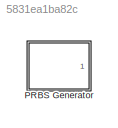
MODEL slx_5831ea1ba82c
KIND model
CONFIG AbsTol = auto
CONFIG FixedStep = auto
CONFIG MaxStep = auto
CONFIG MinStep = auto
CONFIG RelTol = 1e-3
CONFIG SampleTimeConstraint = Unconstrained
CONFIG Solver = ode45
CONFIG SolverMode = Auto
CONFIG SolverName = ode45
CONFIG StartTime = 0.0
CONFIG StopTime = 10.0
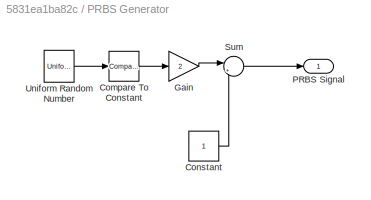
BLOCK [SubSystem] PRBS Generator
  Ports = [0, 1]
  RequestExecContextInheritance = off
BLOCK [Outport] PRBS Generator/ PRBS Signal
  IconDisplay = Port number
BLOCK [Reference] PRBS Generator/Compare To Constant  REF=simulink/Logic and Bit
Operations/Compare
To Constant
  OutDataTypeStr = boolean
  Ports = [1, 1]
  SourceBlock = simulink/Logic and Bit\nOperations/Compare\nTo Constant
  SourceType = Compare To Constant
  ZeroCross = on
  const = 0
  relop = >=
BLOCK [Constant] PRBS Generator/Constant
BLOCK [Gain] PRBS Generator/Gain
  Gain = 2
  OutDataTypeStr = Inherit: Inherit via internal rule
  ParamDataTypeStr = Inherit: Inherit via internal rule
  SaturateOnIntegerOverflow = off
BLOCK [Sum] PRBS Generator/Sum
  IconShape = round
  InputSameDT = off
  Inputs = |+-
  OutDataTypeStr = Inherit: Inherit via internal rule
  Ports = [2, 1]
  SaturateOnIntegerOverflow = off
BLOCK [UniformRandomNumber] PRBS Generator/Uniform Random Number
  SampleTime = 0.1
LINE PRBS Generator/Compare To Constant:1 -> PRBS Generator/Gain:1
LINE PRBS Generator/Constant:1 -> PRBS Generator/Sum:2
LINE PRBS Generator/Gain:1 -> PRBS Generator/Sum:1
LINE PRBS Generator/Sum:1 -> PRBS Generator/ PRBS Signal:1
LINE PRBS Generator/Uniform Random Number:1 -> PRBS Generator/Compare To Constant:1
